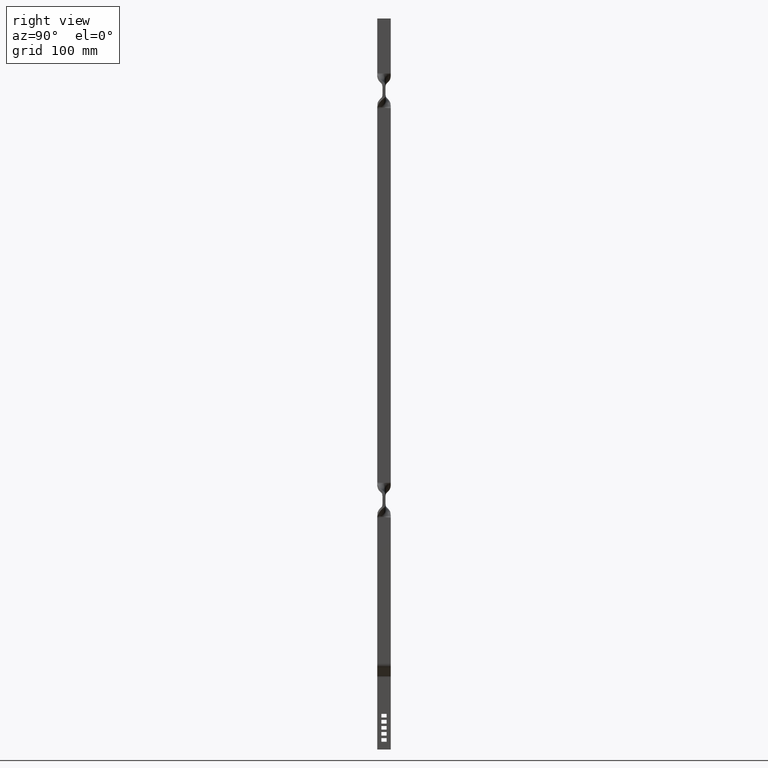
[diagram: clean part render]
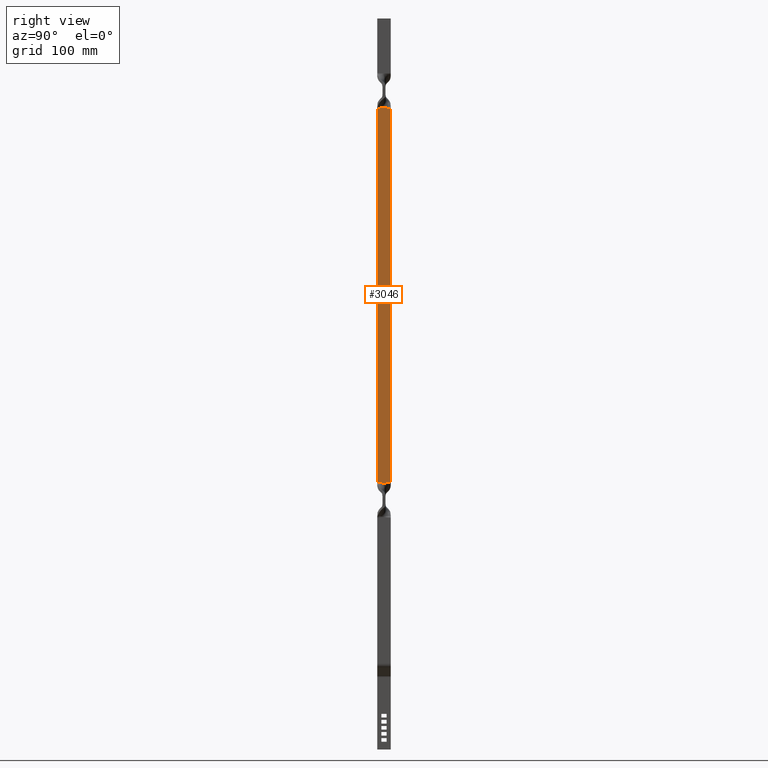
[diagram: same view with one face highlighted and labeled with its STEP entity id]
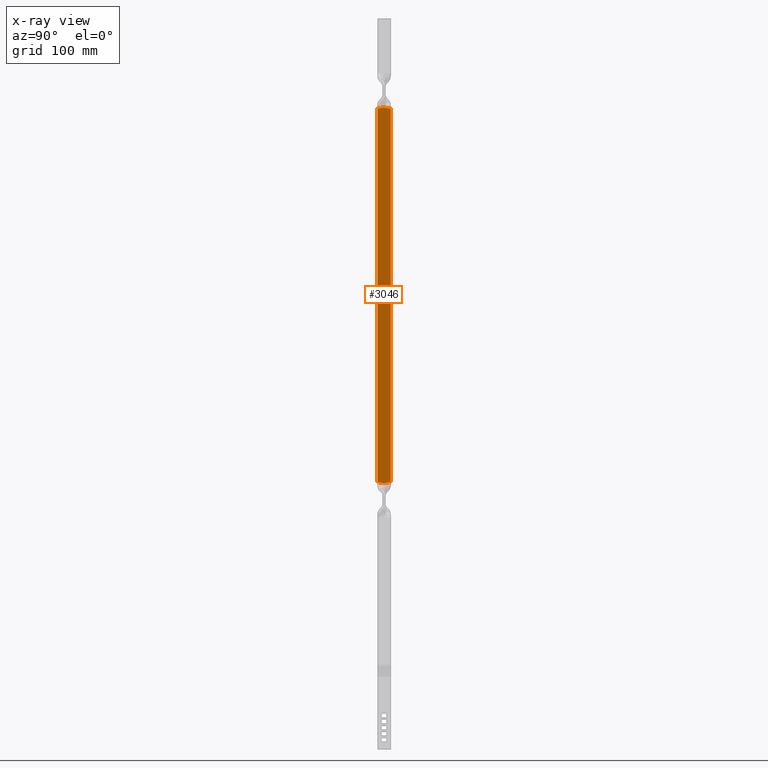
[diagram: x-ray of the same camera — body ghosted, the highlighted face saturated]
A machine part, right view. The second image highlights one B-rep face of the part: STEP entity #3046.
The next image is the same camera in x-ray: the body ghosted, the highlighted face saturated — about 0% of this face is hidden behind the body in this view.
In plain terms, the highlighted face is a freeform B-spline surface patch.
Its self-contained STEP definition (entity closure, byte-faithful):
#731=CARTESIAN_POINT('',(10.499999999975699,-0.271775746040640,656.499999864693000));
#732=VERTEX_POINT('',#731);
#733=CARTESIAN_POINT('',(10.499999999975600,-7.000000000000160,655.313138716548110));
#734=VERTEX_POINT('',#733);
#735=CARTESIAN_POINT('',(10.499999999975699,-0.271775746040640,656.499999864693000));
#736=CARTESIAN_POINT('',(10.499999999975691,-0.828537849573836,656.380513610651860));
#737=CARTESIAN_POINT('',(10.499999999975740,-1.385487364078932,656.259859835033470));
#738=CARTESIAN_POINT('',(10.499999999975721,-2.501421362213328,656.030177948746880));
#739=CARTESIAN_POINT('',(10.499999999975801,-3.060560236041074,655.921247943007980));
#740=CARTESIAN_POINT('',(10.499999999975790,-4.182009287864996,655.720279087449170));
#741=CARTESIAN_POINT('',(10.499999999975881,-4.743986133301021,655.628099401636630));
#742=CARTESIAN_POINT('',(10.499999999975870,-5.870319582463500,655.459521368692780));
#743=CARTESIAN_POINT('',(10.499999999975611,-6.434663200717975,655.383036908558550));
#744=CARTESIAN_POINT('',(10.499999999975600,-7.000000000000139,655.313138716548110));
#745=B_SPLINE_CURVE_WITH_KNOTS('',3,(#735,#736,#737,#738,#739,#740,#741,#742,#743,#744),.UNSPECIFIED.,.F.,.U.,(4,2,2,2,4),(0.0,0.250000000000000,0.500000000000000,0.750000000000000,1.0),.UNSPECIFIED.);
#746=EDGE_CURVE('',#732,#734,#745,.T.);
#879=CARTESIAN_POINT('',(10.499999999975801,6.999999999999821,655.289823060119030));
#880=VERTEX_POINT('',#879);
#881=CARTESIAN_POINT('',(10.499999999975801,6.999999999999810,655.289823060119030));
#882=CARTESIAN_POINT('',(10.499999999975790,6.389812878324690,655.363019088062860));
#883=CARTESIAN_POINT('',(10.499999999975630,5.780642736340584,655.443213533542920));
#884=CARTESIAN_POINT('',(10.499999999975611,4.564574697634791,655.619239040682370));
#885=CARTESIAN_POINT('',(10.499999999975870,3.957689163754349,655.715155178105870));
#886=CARTESIAN_POINT('',(10.499999999975850,2.746067614053486,655.921779513227420));
#887=CARTESIAN_POINT('',(10.499999999975779,2.141573673938027,656.032512532925580));
#888=CARTESIAN_POINT('',(10.499999999975770,0.934187228391841,656.262608756840450));
#889=CARTESIAN_POINT('',(10.499999999975770,0.331125423914105,656.381840325048070));
#890=CARTESIAN_POINT('',(10.499999999975699,-0.271775746040640,656.499999864693000));
#891=B_SPLINE_CURVE_WITH_KNOTS('',3,(#881,#882,#883,#884,#885,#886,#887,#888,#889,#890),.UNSPECIFIED.,.F.,.U.,(4,2,2,2,4),(0.0,0.250000000000000,0.500000000000000,0.750000000000000,1.0),.UNSPECIFIED.);
#892=EDGE_CURVE('',#880,#732,#891,.T.);
#946=CARTESIAN_POINT('',(10.499999999975699,-0.271775746040690,266.499999864596020));
#947=VERTEX_POINT('',#946);
#980=CARTESIAN_POINT('',(10.499999999975600,-7.000000000000160,267.686861012653990));
#981=VERTEX_POINT('',#980);
#982=CARTESIAN_POINT('',(10.499999999975600,-7.000000000000180,267.686861012653990));
#983=CARTESIAN_POINT('',(10.499999999975611,-6.434663200717973,267.616962820642580));
#984=CARTESIAN_POINT('',(10.499999999975770,-5.870319582463388,267.540478360507680));
#985=CARTESIAN_POINT('',(10.499999999975790,-4.743986133300900,267.371900327561600));
#986=CARTESIAN_POINT('',(10.499999999975641,-4.182009287864920,267.279720641748330));
#987=CARTESIAN_POINT('',(10.499999999975660,-3.060560236041060,267.078751786187300));
#988=CARTESIAN_POINT('',(10.499999999975691,-2.501421362213302,266.969821780447600));
#989=CARTESIAN_POINT('',(10.499999999975710,-1.385487364078950,266.740139894159200));
#990=CARTESIAN_POINT('',(10.499999999975691,-0.828537849573801,266.619486118540520));
#991=CARTESIAN_POINT('',(10.499999999975699,-0.271775746040690,266.499999864596020));
#992=B_SPLINE_CURVE_WITH_KNOTS('',3,(#982,#983,#984,#985,#986,#987,#988,#989,#990,#991),.UNSPECIFIED.,.F.,.U.,(4,2,2,2,4),(0.0,0.250000000000000,0.500000000000000,0.750000000000000,1.0),.UNSPECIFIED.);
#993=EDGE_CURVE('',#981,#947,#992,.T.);
#1058=CARTESIAN_POINT('',(10.499999999975801,6.999999999999821,267.710176669065110));
#1059=VERTEX_POINT('',#1058);
#1073=CARTESIAN_POINT('',(10.499999999975699,-0.271775746040690,266.499999864596020));
#1074=CARTESIAN_POINT('',(10.499999999975710,0.331125423919374,266.618159404116680));
#1075=CARTESIAN_POINT('',(10.499999999975710,0.934187228391755,266.737390972351420));
#1076=CARTESIAN_POINT('',(10.499999999975721,2.141573673937914,266.967487196265320));
#1077=CARTESIAN_POINT('',(10.499999999975721,2.746067614053379,267.078220215962520));
#1078=CARTESIAN_POINT('',(10.499999999975740,3.957689163754298,267.284844551082190));
#1079=CARTESIAN_POINT('',(10.499999999975710,4.564574697634828,267.380760688505180));
#1080=CARTESIAN_POINT('',(10.499999999975721,5.780642736340684,267.556786195642590));
#1081=CARTESIAN_POINT('',(10.499999999975790,6.389812878324700,267.636980641122420));
#1082=CARTESIAN_POINT('',(10.499999999975801,6.999999999999821,267.710176669065110));
#1083=B_SPLINE_CURVE_WITH_KNOTS('',3,(#1073,#1074,#1075,#1076,#1077,#1078,#1079,#1080,#1081,#1082),.UNSPECIFIED.,.F.,.U.,(4,2,2,2,4),(0.0,0.250000000000000,0.500000000000000,0.750000000000000,1.0),.UNSPECIFIED.);
#1084=EDGE_CURVE('',#947,#1059,#1083,.T.);
#3025=CARTESIAN_POINT('',(10.499999999975801,-7.699299972865441,247.019500620486810));
#3026=CARTESIAN_POINT('',(10.499999999975801,7.699300348374366,247.019500620486810));
#3027=CARTESIAN_POINT('',(10.499999999975801,-7.699299972865441,675.980509569417220));
#3028=CARTESIAN_POINT('',(10.499999999975801,7.699300348374366,675.980509569417220));
#3029=B_SPLINE_SURFACE_WITH_KNOTS('',1,1,((#3025,#3027),(#3026,#3028)),.UNSPECIFIED.,.F.,.F.,.U.,(2,2),(2,2),(0.0,15.398600321239810),(0.0,428.961008948930380),.UNSPECIFIED.);
#3030=CARTESIAN_POINT('',(10.499999999975801,6.999999999999821,655.289823060119030));
#3031=CARTESIAN_POINT('',(10.499999999975801,6.999999999999821,267.710176669065110));
#3032=QUASI_UNIFORM_CURVE('',1,(#3030,#3031),.UNSPECIFIED.,.F.,.U.);
#3033=EDGE_CURVE('',#880,#1059,#3032,.T.);
#3034=ORIENTED_EDGE('',*,*,#3033,.F.);
#3035=ORIENTED_EDGE('',*,*,#892,.T.);
#3036=ORIENTED_EDGE('',*,*,#746,.T.);
#3037=CARTESIAN_POINT('',(10.499999999975600,-7.000000000000160,655.313138716548110));
#3038=CARTESIAN_POINT('',(10.499999999975600,-7.000000000000160,267.686861012653990));
#3039=QUASI_UNIFORM_CURVE('',1,(#3037,#3038),.UNSPECIFIED.,.F.,.U.);
#3040=EDGE_CURVE('',#734,#981,#3039,.T.);
#3041=ORIENTED_EDGE('',*,*,#3040,.T.);
#3042=ORIENTED_EDGE('',*,*,#993,.T.);
#3043=ORIENTED_EDGE('',*,*,#1084,.T.);
#3044=EDGE_LOOP('',(#3034,#3035,#3036,#3041,#3042,#3043));
#3045=FACE_OUTER_BOUND('',#3044,.T.);
#3046=ADVANCED_FACE('',(#3045),#3029,.T.);